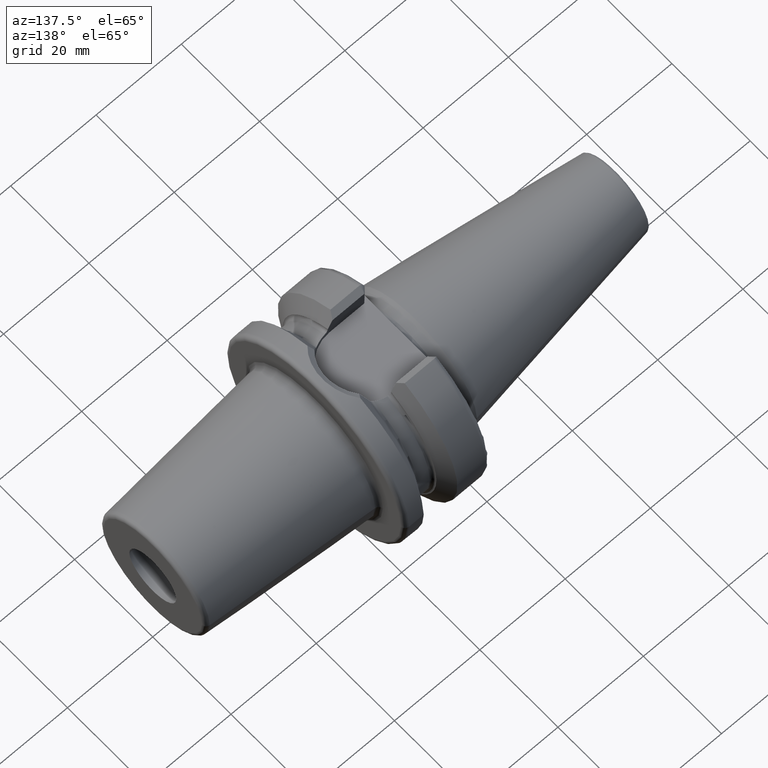
[diagram: clean part render]
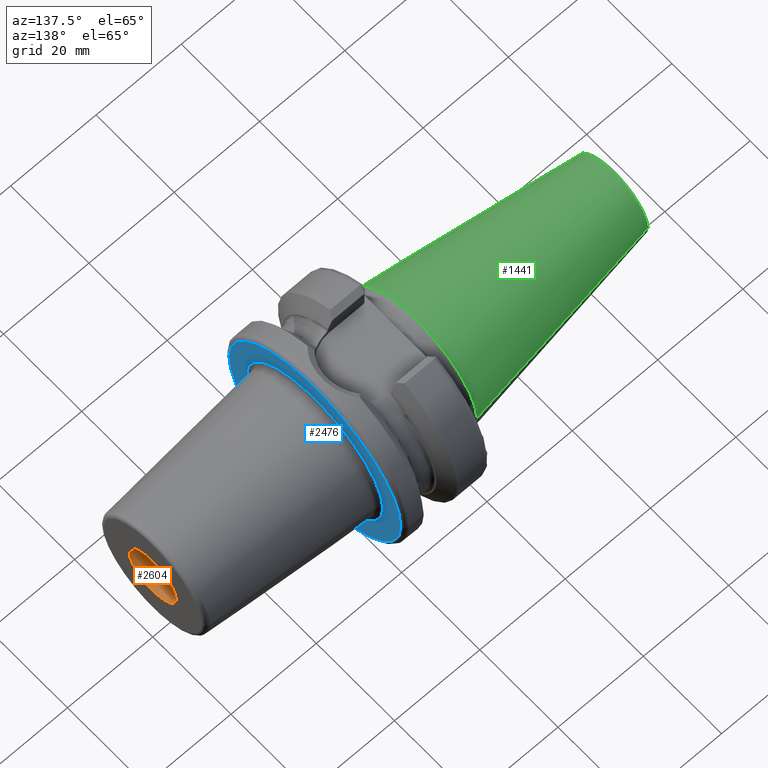
[diagram: same view with three faces highlighted in distinct colors, each labeled with its STEP entity id]
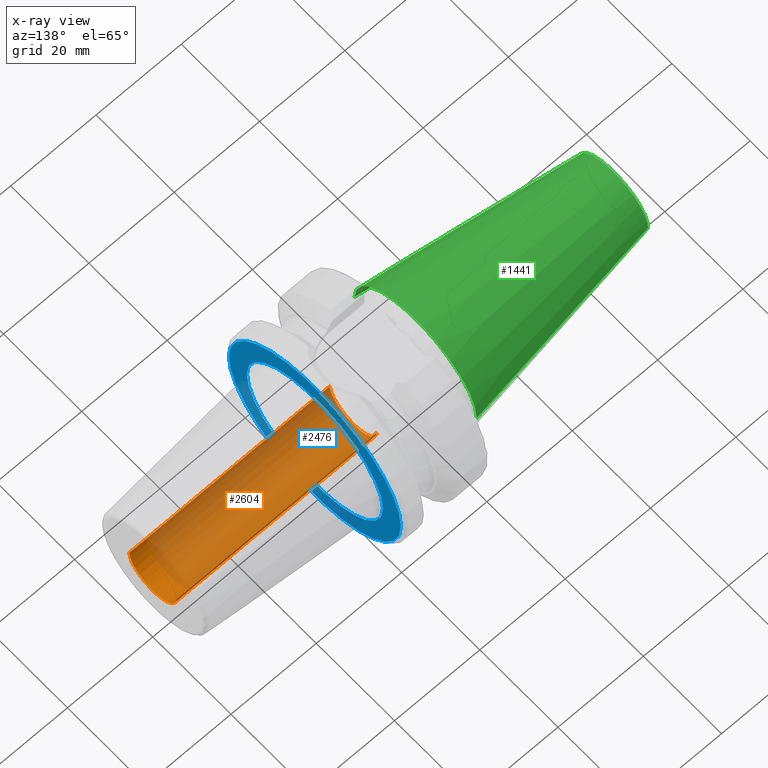
[diagram: x-ray of the same camera — body ghosted, the three highlighted faces saturated]
A machine part, auxiliary view with three faces highlighted in distinct colors.
The next image is the same camera in x-ray (body ghosted, the three faces saturated) — at least one of them is partly hidden behind the body in this view.
Their STEP definitions:

[orange] entity #2604 — the highlighted cylindrical surface (edge-blend (fillet) strip) has radius 6 mm, axis along (-1, 0, 0).
#885=CARTESIAN_POINT('',(6.E1,0.E0,0.E0));
#886=DIRECTION('',(-1.E0,0.E0,0.E0));
#887=DIRECTION('',(0.E0,1.E0,0.E0));
#888=AXIS2_PLACEMENT_3D('',#885,#886,#887);
#900=DIRECTION('',(-1.E0,0.E0,0.E0));
#901=VECTOR('',#900,4.7E1);
#902=CARTESIAN_POINT('',(6.E1,-6.E0,0.E0));
#903=LINE('',#902,#901);
#904=DIRECTION('',(-1.E0,0.E0,0.E0));
#905=VECTOR('',#904,4.7E1);
#906=CARTESIAN_POINT('',(6.E1,6.E0,0.E0));
#907=LINE('',#906,#905);
#913=CARTESIAN_POINT('',(1.3E1,0.E0,0.E0));
#914=DIRECTION('',(-1.E0,0.E0,0.E0));
#915=DIRECTION('',(0.E0,1.E0,0.E0));
#916=AXIS2_PLACEMENT_3D('',#913,#914,#915);
#1357=CARTESIAN_POINT('',(1.3E1,-6.E0,0.E0));
#1358=CARTESIAN_POINT('',(1.3E1,6.E0,0.E0));
#1359=VERTEX_POINT('',#1357);
#1360=VERTEX_POINT('',#1358);
#1361=CARTESIAN_POINT('',(6.E1,-6.E0,0.E0));
#1362=CARTESIAN_POINT('',(6.E1,6.E0,0.E0));
#1363=VERTEX_POINT('',#1361);
#1364=VERTEX_POINT('',#1362);
#2592=CARTESIAN_POINT('',(6.E1,0.E0,0.E0));
#2593=DIRECTION('',(-1.E0,0.E0,0.E0));
#2594=DIRECTION('',(0.E0,-1.E0,0.E0));
#2595=AXIS2_PLACEMENT_3D('',#2592,#2593,#2594);
#2596=CYLINDRICAL_SURFACE('',#2595,6.E0);
#2597=ORIENTED_EDGE('',*,*,#2572,.T.);
#2598=ORIENTED_EDGE('',*,*,#2587,.T.);
#2600=ORIENTED_EDGE('',*,*,#2599,.F.);
#2601=ORIENTED_EDGE('',*,*,#2583,.F.);
#2602=EDGE_LOOP('',(#2597,#2598,#2600,#2601));
#2603=FACE_OUTER_BOUND('',#2602,.F.);
#2604=ADVANCED_FACE('',(#2603),#2596,.F.);
#889=CIRCLE('',#888,6.E0);
#917=CIRCLE('',#916,6.E0);
#2572=EDGE_CURVE('',#1364,#1363,#889,.T.);
#2583=EDGE_CURVE('',#1364,#1360,#907,.T.);
#2587=EDGE_CURVE('',#1363,#1359,#903,.T.);
#2599=EDGE_CURVE('',#1360,#1359,#917,.T.);

[blue] entity #2476 — the highlighted planar face has unit normal (1, 0, 0).
#802=CARTESIAN_POINT('',(2.2E1,0.E0,0.E0));
#803=DIRECTION('',(1.E0,0.E0,0.E0));
#804=DIRECTION('',(0.E0,1.E0,0.E0));
#805=AXIS2_PLACEMENT_3D('',#802,#803,#804);
#817=CARTESIAN_POINT('',(2.2E1,0.E0,0.E0));
#818=DIRECTION('',(-1.E0,0.E0,0.E0));
#819=DIRECTION('',(0.E0,1.E0,0.E0));
#820=AXIS2_PLACEMENT_3D('',#817,#818,#819);
#822=CARTESIAN_POINT('',(2.2E1,0.E0,0.E0));
#823=DIRECTION('',(1.E0,0.E0,0.E0));
#824=DIRECTION('',(0.E0,-1.E0,0.E0));
#825=AXIS2_PLACEMENT_3D('',#822,#823,#824);
#827=CARTESIAN_POINT('',(2.2E1,0.E0,0.E0));
#828=DIRECTION('',(1.E0,0.E0,0.E0));
#829=DIRECTION('',(0.E0,1.E0,0.E0));
#830=AXIS2_PLACEMENT_3D('',#827,#828,#829);
#1272=CARTESIAN_POINT('',(2.2E1,2.199E1,0.E0));
#1273=VERTEX_POINT('',#1272);
#1274=CARTESIAN_POINT('',(2.2E1,-2.199E1,0.E0));
#1275=VERTEX_POINT('',#1274);
#1373=CARTESIAN_POINT('',(2.2E1,-1.741505535099E1,0.E0));
#1374=CARTESIAN_POINT('',(2.2E1,1.741505535099E1,0.E0));
#1375=VERTEX_POINT('',#1373);
#1376=VERTEX_POINT('',#1374);
#2461=CARTESIAN_POINT('',(2.2E1,0.E0,0.E0));
#2462=DIRECTION('',(1.E0,0.E0,0.E0));
#2463=DIRECTION('',(0.E0,-1.E0,0.E0));
#2464=AXIS2_PLACEMENT_3D('',#2461,#2462,#2463);
#2465=PLANE('',#2464);
#2466=ORIENTED_EDGE('',*,*,#2456,.T.);
#2467=ORIENTED_EDGE('',*,*,#2440,.F.);
#2468=EDGE_LOOP('',(#2466,#2467));
#2469=FACE_OUTER_BOUND('',#2468,.F.);
#2471=ORIENTED_EDGE('',*,*,#2470,.T.);
#2473=ORIENTED_EDGE('',*,*,#2472,.T.);
#2474=EDGE_LOOP('',(#2471,#2473));
#2475=FACE_BOUND('',#2474,.F.);
#2476=ADVANCED_FACE('',(#2469,#2475),#2465,.T.);
#806=CIRCLE('',#805,2.199E1);
#821=CIRCLE('',#820,2.199E1);
#826=CIRCLE('',#825,1.741505535099E1);
#831=CIRCLE('',#830,1.741505535099E1);
#2440=EDGE_CURVE('',#1273,#1275,#806,.T.);
#2456=EDGE_CURVE('',#1273,#1275,#821,.T.);
#2470=EDGE_CURVE('',#1375,#1376,#826,.T.);
#2472=EDGE_CURVE('',#1376,#1375,#831,.T.);

[green] entity #1441 — the highlighted conical surface has half-angle 8.298 deg.
#37=CARTESIAN_POINT('',(-4.797215933459E1,0.E0,0.E0));
#38=DIRECTION('',(1.E0,0.E0,0.E0));
#39=DIRECTION('',(0.E0,1.E0,0.E0));
#40=AXIS2_PLACEMENT_3D('',#37,#38,#39);
#42=CARTESIAN_POINT('',(-1.629230650827E0,0.E0,0.E0));
#43=DIRECTION('',(1.E0,0.E0,0.E0));
#44=DIRECTION('',(0.E0,1.E0,0.E0));
#45=AXIS2_PLACEMENT_3D('',#42,#43,#44);
#47=DIRECTION('',(-9.895312636440E-1,-1.443186691705E-1,0.E0));
#48=VECTOR('',#47,4.683321324594E1);
#49=CARTESIAN_POINT('',(-1.629230650827E0,1.563738406209E1,0.E0));
#50=LINE('',#49,#48);
#51=DIRECTION('',(-9.895312636440E-1,1.443186691705E-1,0.E0));
#52=VECTOR('',#51,4.683321324594E1);
#53=CARTESIAN_POINT('',(-1.629230650827E0,-1.563738406209E1,0.E0));
#54=LINE('',#53,#52);
#1138=CARTESIAN_POINT('',(-4.797215933459E1,8.878477053461E0,0.E0));
#1140=VERTEX_POINT('',#1138);
#1142=CARTESIAN_POINT('',(-4.797215933459E1,-8.878477053461E0,0.E0));
#1144=VERTEX_POINT('',#1142);
#1353=CARTESIAN_POINT('',(-1.629230650827E0,1.563738406209E1,0.E0));
#1354=VERTEX_POINT('',#1353);
#1355=CARTESIAN_POINT('',(-1.629230650827E0,-1.563738406209E1,0.E0));
#1356=VERTEX_POINT('',#1355);
#1427=CARTESIAN_POINT('',(-2.480069499271E1,0.E0,0.E0));
#1428=DIRECTION('',(1.E0,0.E0,0.E0));
#1429=DIRECTION('',(0.E0,-1.E0,0.E0));
#1430=AXIS2_PLACEMENT_3D('',#1427,#1428,#1429);
#1431=CONICAL_SURFACE('',#1430,1.225793055778E1,8.297826828206E0);
#1433=ORIENTED_EDGE('',*,*,#1432,.F.);
#1435=ORIENTED_EDGE('',*,*,#1434,.T.);
#1437=ORIENTED_EDGE('',*,*,#1436,.T.);
#1438=ORIENTED_EDGE('',*,*,#1420,.F.);
#1439=EDGE_LOOP('',(#1433,#1435,#1437,#1438));
#1440=FACE_OUTER_BOUND('',#1439,.F.);
#1441=ADVANCED_FACE('',(#1440),#1431,.T.);
#41=CIRCLE('',#40,8.878477053461E0);
#46=CIRCLE('',#45,1.563738406209E1);
#1420=EDGE_CURVE('',#1140,#1144,#41,.T.);
#1432=EDGE_CURVE('',#1354,#1140,#50,.T.);
#1434=EDGE_CURVE('',#1354,#1356,#46,.T.);
#1436=EDGE_CURVE('',#1356,#1144,#54,.T.);